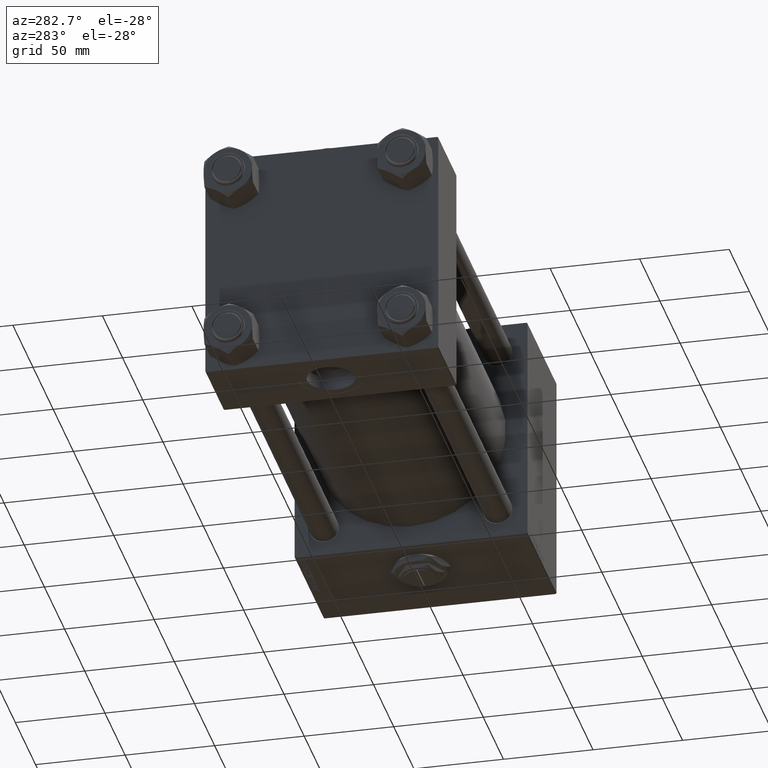
[diagram: clean part render]
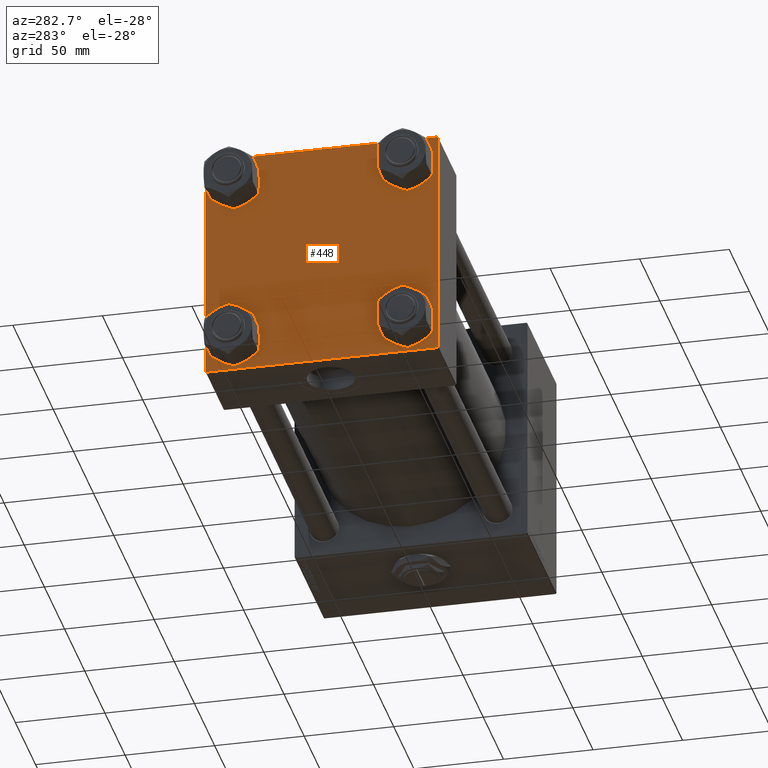
[diagram: same view with one face highlighted and labeled with its STEP entity id]
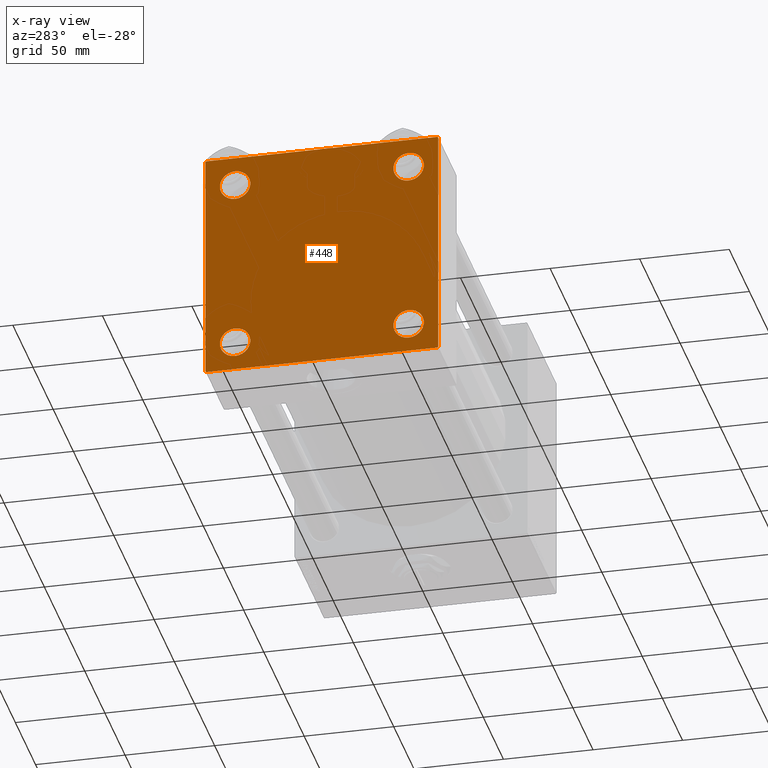
[diagram: x-ray of the same camera — body ghosted, the highlighted face saturated]
A machine part, auxiliary view. The second image highlights one B-rep face of the part: STEP entity #448.
The next image is the same camera in x-ray: the body ghosted, the highlighted face saturated — about 0% of this face is hidden behind the body in this view.
In plain terms, the highlighted planar face has unit normal (-1, 0, 0).
Its self-contained STEP definition (entity closure, byte-faithful):
#448 = ADVANCED_FACE ( 'NONE', ( #39288, #14384, #2610, #14916, #30456 ), #25912, .T. ) ;
#1023 = EDGE_CURVE ( 'NONE', #41001, #34245, #35701, .T. ) ;
#1414 = ORIENTED_EDGE ( 'NONE', *, *, #17719, .T. ) ;
#1462 = DIRECTION ( 'NONE',  ( 1.000000000000000000, -0.000000000000000000, 0.000000000000000000 ) ) ;
#1557 = LINE ( 'NONE', #17903, #47266 ) ;
#1993 = CARTESIAN_POINT ( 'NONE',  ( 0.000000000000000000, -64.49999999999994316, -65.00000000000000000 ) ) ;
#2538 = CARTESIAN_POINT ( 'NONE',  ( 0.000000000000000000, 64.74999999999998579, 64.74999999999998579 ) ) ;
#2610 = FACE_BOUND ( 'NONE', #4353, .T. ) ;
#2835 = EDGE_CURVE ( 'NONE', #42471, #6099, #44287, .T. ) ;
#2980 = EDGE_LOOP ( 'NONE', ( #52546, #1414 ) ) ;
#3197 = AXIS2_PLACEMENT_3D ( 'NONE', #38036, #29479, #25194 ) ;
#3945 = DIRECTION ( 'NONE',  ( 0.000000000000000000, -0.7071067811865279218, 0.7071067811865671127 ) ) ;
#4044 = AXIS2_PLACEMENT_3D ( 'NONE', #26436, #34755, #10102 ) ;
#4175 = CARTESIAN_POINT ( 'NONE',  ( 0.000000000000000000, -48.44999999999999574, -48.45000000000003126 ) ) ;
#4353 = EDGE_LOOP ( 'NONE', ( #25319, #19997 ) ) ;
#4498 = CARTESIAN_POINT ( 'NONE',  ( 0.000000000000000000, 65.00000000000000000, -64.49999999999995737 ) ) ;
#4840 = VERTEX_POINT ( 'NONE', #15905 ) ;
#5223 = LINE ( 'NONE', #25299, #40717 ) ;
#5759 = EDGE_CURVE ( 'NONE', #6099, #42471, #40987, .T. ) ;
#6099 = VERTEX_POINT ( 'NONE', #17305 ) ;
#6207 = VERTEX_POINT ( 'NONE', #16716 ) ;
#6499 = DIRECTION ( 'NONE',  ( 0.000000000000000000, 0.000000000000000000, -1.000000000000000000 ) ) ;
#7003 = DIRECTION ( 'NONE',  ( 1.000000000000000000, -0.000000000000000000, 0.000000000000000000 ) ) ;
#7056 = AXIS2_PLACEMENT_3D ( 'NONE', #44792, #8109, #24445 ) ;
#7259 = ORIENTED_EDGE ( 'NONE', *, *, #10277, .T. ) ;
#8109 = DIRECTION ( 'NONE',  ( 1.000000000000000000, -0.000000000000000000, 0.000000000000000000 ) ) ;
#8413 = ORIENTED_EDGE ( 'NONE', *, *, #42019, .T. ) ;
#8904 = AXIS2_PLACEMENT_3D ( 'NONE', #14762, #7003, #42876 ) ;
#9655 = VERTEX_POINT ( 'NONE', #23507 ) ;
#9821 = ORIENTED_EDGE ( 'NONE', *, *, #47627, .T. ) ;
#10102 = DIRECTION ( 'NONE',  ( -0.000000000000000000, 0.000000000000000000, 1.000000000000000000 ) ) ;
#10277 = EDGE_CURVE ( 'NONE', #29245, #26717, #1557, .T. ) ;
#11655 = VERTEX_POINT ( 'NONE', #1993 ) ;
#11755 = CARTESIAN_POINT ( 'NONE',  ( 0.000000000000000000, -64.49999999999997158, 65.00000000000000000 ) ) ;
#12037 = CARTESIAN_POINT ( 'NONE',  ( 0.000000000000000000, 48.45000000000000995, 56.95000000000002416 ) ) ;
#13097 = DIRECTION ( 'NONE',  ( -0.000000000000000000, -0.7071067811865474617, -0.7071067811865474617 ) ) ;
#14217 = EDGE_CURVE ( 'NONE', #34245, #41001, #50666, .T. ) ;
#14315 = VERTEX_POINT ( 'NONE', #30027 ) ;
#14384 = FACE_BOUND ( 'NONE', #35658, .T. ) ;
#14585 = DIRECTION ( 'NONE',  ( 0.000000000000000000, 0.000000000000000000, 1.000000000000000000 ) ) ;
#14762 = CARTESIAN_POINT ( 'NONE',  ( 0.000000000000000000, -48.44999999999999574, 48.45000000000003126 ) ) ;
#14916 = FACE_BOUND ( 'NONE', #16850, .T. ) ;
#14990 = EDGE_CURVE ( 'NONE', #29292, #39689, #41036, .T. ) ;
#15448 = CARTESIAN_POINT ( 'NONE',  ( 0.000000000000000000, 64.49999999999997158, -64.99999999999998579 ) ) ;
#15527 = CARTESIAN_POINT ( 'NONE',  ( 0.000000000000000000, 48.45000000000000995, 39.95000000000000284 ) ) ;
#15768 = CIRCLE ( 'NONE', #8904, 8.500000000000007105 ) ;
#15905 = CARTESIAN_POINT ( 'NONE',  ( 0.000000000000000000, 65.00000000000000000, 64.49999999999998579 ) ) ;
#16378 = EDGE_LOOP ( 'NONE', ( #36445, #7259, #30328, #9821, #42240, #8413, #31474, #26389 ) ) ;
#16481 = DIRECTION ( 'NONE',  ( 0.000000000000000000, 0.000000000000000000, 1.000000000000000000 ) ) ;
#16716 = CARTESIAN_POINT ( 'NONE',  ( 0.000000000000000000, -48.44999999999999574, 56.95000000000003837 ) ) ;
#16850 = EDGE_LOOP ( 'NONE', ( #48788, #28398 ) ) ;
#17305 = CARTESIAN_POINT ( 'NONE',  ( 0.000000000000000000, 48.45000000000000995, -56.95000000000002416 ) ) ;
#17510 = DIRECTION ( 'NONE',  ( 0.000000000000000000, 0.000000000000000000, -1.000000000000000000 ) ) ;
#17593 = CARTESIAN_POINT ( 'NONE',  ( 0.000000000000000000, 64.49999999999997158, 65.00000000000001421 ) ) ;
#17719 = EDGE_CURVE ( 'NONE', #25530, #6207, #15768, .T. ) ;
#17900 = AXIS2_PLACEMENT_3D ( 'NONE', #20144, #36493, #52829 ) ;
#17903 = CARTESIAN_POINT ( 'NONE',  ( 0.000000000000000000, 64.74999999999997158, -64.74999999999997158 ) ) ;
#18618 = ORIENTED_EDGE ( 'NONE', *, *, #28586, .T. ) ;
#18873 = DIRECTION ( 'NONE',  ( 0.000000000000000000, 0.7071067811865474617, -0.7071067811865474617 ) ) ;
#19425 = CARTESIAN_POINT ( 'NONE',  ( 0.000000000000000000, -48.44999999999999574, -48.45000000000003126 ) ) ;
#19508 = VECTOR ( 'NONE', #17510, 1000.000000000000000 ) ;
#19997 = ORIENTED_EDGE ( 'NONE', *, *, #5759, .T. ) ;
#20144 = CARTESIAN_POINT ( 'NONE',  ( 0.000000000000000000, 48.45000000000000995, -48.45000000000001705 ) ) ;
#20485 = DIRECTION ( 'NONE',  ( 0.000000000000000000, 0.000000000000000000, 1.000000000000000000 ) ) ;
#21429 = VECTOR ( 'NONE', #6499, 1000.000000000000000 ) ;
#21478 = DIRECTION ( 'NONE',  ( 0.000000000000000000, -1.000000000000000000, -1.067522139062650425E-16 ) ) ;
#21885 = EDGE_CURVE ( 'NONE', #26717, #11655, #5223, .T. ) ;
#23044 = CIRCLE ( 'NONE', #41833, 8.500000000000007105 ) ;
#23507 = CARTESIAN_POINT ( 'NONE',  ( 0.000000000000000000, -48.44999999999999574, -56.95000000000003837 ) ) ;
#23768 = AXIS2_PLACEMENT_3D ( 'NONE', #41103, #45644, #33084 ) ;
#24083 = CARTESIAN_POINT ( 'NONE',  ( 0.000000000000000000, -65.00000000000000000, -64.49999999999991473 ) ) ;
#24303 = CARTESIAN_POINT ( 'NONE',  ( 0.000000000000000000, -64.75000000000176215, -64.74999999999816680 ) ) ;
#24445 = DIRECTION ( 'NONE',  ( 0.000000000000000000, 0.000000000000000000, 1.000000000000000000 ) ) ;
#24555 = LINE ( 'NONE', #24303, #32429 ) ;
#25194 = DIRECTION ( 'NONE',  ( 0.000000000000000000, 0.000000000000000000, 1.000000000000000000 ) ) ;
#25278 = CARTESIAN_POINT ( 'NONE',  ( 0.000000000000000000, -65.00000000000000000, 65.00000000000000000 ) ) ;
#25299 = CARTESIAN_POINT ( 'NONE',  ( 0.000000000000000000, 65.00000000000000000, -64.99999999999998579 ) ) ;
#25319 = ORIENTED_EDGE ( 'NONE', *, *, #2835, .T. ) ;
#25530 = VERTEX_POINT ( 'NONE', #25946 ) ;
#25912 = PLANE ( 'NONE',  #4044 ) ;
#25946 = CARTESIAN_POINT ( 'NONE',  ( 0.000000000000000000, -48.44999999999999574, 39.95000000000001705 ) ) ;
#26389 = ORIENTED_EDGE ( 'NONE', *, *, #44580, .T. ) ;
#26436 = CARTESIAN_POINT ( 'NONE',  ( 0.000000000000000000, 0.000000000000000000, 0.000000000000000000 ) ) ;
#26536 = VERTEX_POINT ( 'NONE', #24083 ) ;
#26717 = VERTEX_POINT ( 'NONE', #15448 ) ;
#26855 = LINE ( 'NONE', #50713, #21429 ) ;
#27969 = VERTEX_POINT ( 'NONE', #31911 ) ;
#28067 = CIRCLE ( 'NONE', #35748, 8.500000000000007105 ) ;
#28398 = ORIENTED_EDGE ( 'NONE', *, *, #14217, .T. ) ;
#28586 = EDGE_CURVE ( 'NONE', #27969, #9655, #29702, .T. ) ;
#29245 = VERTEX_POINT ( 'NONE', #4498 ) ;
#29292 = VERTEX_POINT ( 'NONE', #17593 ) ;
#29310 = LINE ( 'NONE', #25278, #19508 ) ;
#29479 = DIRECTION ( 'NONE',  ( 1.000000000000000000, -0.000000000000000000, 0.000000000000000000 ) ) ;
#29702 = CIRCLE ( 'NONE', #33119, 8.500000000000007105 ) ;
#30027 = CARTESIAN_POINT ( 'NONE',  ( 0.000000000000000000, -65.00000000000000000, 64.50000000000000000 ) ) ;
#30328 = ORIENTED_EDGE ( 'NONE', *, *, #21885, .T. ) ;
#30456 = FACE_OUTER_BOUND ( 'NONE', #16378, .T. ) ;
#30653 = CARTESIAN_POINT ( 'NONE',  ( 0.000000000000000000, -48.44999999999999574, 48.45000000000003126 ) ) ;
#30849 = EDGE_CURVE ( 'NONE', #14315, #26536, #29310, .T. ) ;
#31474 = ORIENTED_EDGE ( 'NONE', *, *, #14990, .F. ) ;
#31911 = CARTESIAN_POINT ( 'NONE',  ( 0.000000000000000000, -48.44999999999999574, -39.95000000000001705 ) ) ;
#32429 = VECTOR ( 'NONE', #3945, 1000.000000000000000 ) ;
#32755 = VECTOR ( 'NONE', #21478, 1000.000000000000000 ) ;
#33084 = DIRECTION ( 'NONE',  ( 0.000000000000000000, 0.000000000000000000, 1.000000000000000000 ) ) ;
#33119 = AXIS2_PLACEMENT_3D ( 'NONE', #4175, #43814, #16481 ) ;
#33942 = VECTOR ( 'NONE', #50954, 1000.000000000000000 ) ;
#34094 = LINE ( 'NONE', #38621, #33942 ) ;
#34245 = VERTEX_POINT ( 'NONE', #15527 ) ;
#34755 = DIRECTION ( 'NONE',  ( -1.000000000000000000, 0.000000000000000000, -0.000000000000000000 ) ) ;
#35658 = EDGE_LOOP ( 'NONE', ( #18618, #50323 ) ) ;
#35701 = CIRCLE ( 'NONE', #3197, 8.500000000000007105 ) ;
#35748 = AXIS2_PLACEMENT_3D ( 'NONE', #30653, #1462, #14585 ) ;
#36422 = CARTESIAN_POINT ( 'NONE',  ( 0.000000000000000000, 48.45000000000000995, -39.95000000000000284 ) ) ;
#36445 = ORIENTED_EDGE ( 'NONE', *, *, #51794, .T. ) ;
#36493 = DIRECTION ( 'NONE',  ( 1.000000000000000000, -0.000000000000000000, 0.000000000000000000 ) ) ;
#38036 = CARTESIAN_POINT ( 'NONE',  ( 0.000000000000000000, 48.45000000000000995, 48.45000000000001705 ) ) ;
#38151 = LINE ( 'NONE', #2538, #41718 ) ;
#38621 = CARTESIAN_POINT ( 'NONE',  ( -0.000000000000000000, -64.74999999999819522, 64.75000000000179057 ) ) ;
#39288 = FACE_BOUND ( 'NONE', #2980, .T. ) ;
#39689 = VERTEX_POINT ( 'NONE', #11755 ) ;
#40717 = VECTOR ( 'NONE', #45923, 1000.000000000000000 ) ;
#40987 = CIRCLE ( 'NONE', #17900, 8.500000000000007105 ) ;
#41001 = VERTEX_POINT ( 'NONE', #12037 ) ;
#41036 = LINE ( 'NONE', #41818, #32755 ) ;
#41103 = CARTESIAN_POINT ( 'NONE',  ( 0.000000000000000000, 48.45000000000000995, -48.45000000000001705 ) ) ;
#41718 = VECTOR ( 'NONE', #18873, 1000.000000000000114 ) ;
#41818 = CARTESIAN_POINT ( 'NONE',  ( 0.000000000000000000, 65.00000000000000000, 65.00000000000001421 ) ) ;
#41833 = AXIS2_PLACEMENT_3D ( 'NONE', #19425, #52117, #20485 ) ;
#42019 = EDGE_CURVE ( 'NONE', #14315, #39689, #34094, .T. ) ;
#42240 = ORIENTED_EDGE ( 'NONE', *, *, #30849, .F. ) ;
#42471 = VERTEX_POINT ( 'NONE', #36422 ) ;
#42876 = DIRECTION ( 'NONE',  ( 0.000000000000000000, 0.000000000000000000, 1.000000000000000000 ) ) ;
#43814 = DIRECTION ( 'NONE',  ( 1.000000000000000000, -0.000000000000000000, 0.000000000000000000 ) ) ;
#44287 = CIRCLE ( 'NONE', #23768, 8.500000000000007105 ) ;
#44453 = EDGE_CURVE ( 'NONE', #6207, #25530, #28067, .T. ) ;
#44580 = EDGE_CURVE ( 'NONE', #29292, #4840, #38151, .T. ) ;
#44792 = CARTESIAN_POINT ( 'NONE',  ( 0.000000000000000000, 48.45000000000000995, 48.45000000000001705 ) ) ;
#45644 = DIRECTION ( 'NONE',  ( 1.000000000000000000, -0.000000000000000000, 0.000000000000000000 ) ) ;
#45923 = DIRECTION ( 'NONE',  ( 0.000000000000000000, -1.000000000000000000, -1.067522139062650425E-16 ) ) ;
#47266 = VECTOR ( 'NONE', #13097, 1000.000000000000114 ) ;
#47627 = EDGE_CURVE ( 'NONE', #11655, #26536, #24555, .T. ) ;
#47943 = EDGE_CURVE ( 'NONE', #9655, #27969, #23044, .T. ) ;
#48788 = ORIENTED_EDGE ( 'NONE', *, *, #1023, .T. ) ;
#50323 = ORIENTED_EDGE ( 'NONE', *, *, #47943, .T. ) ;
#50666 = CIRCLE ( 'NONE', #7056, 8.500000000000007105 ) ;
#50713 = CARTESIAN_POINT ( 'NONE',  ( 0.000000000000000000, 65.00000000000000000, 65.00000000000001421 ) ) ;
#50954 = DIRECTION ( 'NONE',  ( -0.000000000000000000, 0.7071067811865672237, 0.7071067811865279218 ) ) ;
#51794 = EDGE_CURVE ( 'NONE', #4840, #29245, #26855, .T. ) ;
#52117 = DIRECTION ( 'NONE',  ( 1.000000000000000000, -0.000000000000000000, 0.000000000000000000 ) ) ;
#52546 = ORIENTED_EDGE ( 'NONE', *, *, #44453, .T. ) ;
#52829 = DIRECTION ( 'NONE',  ( 0.000000000000000000, 0.000000000000000000, 1.000000000000000000 ) ) ;